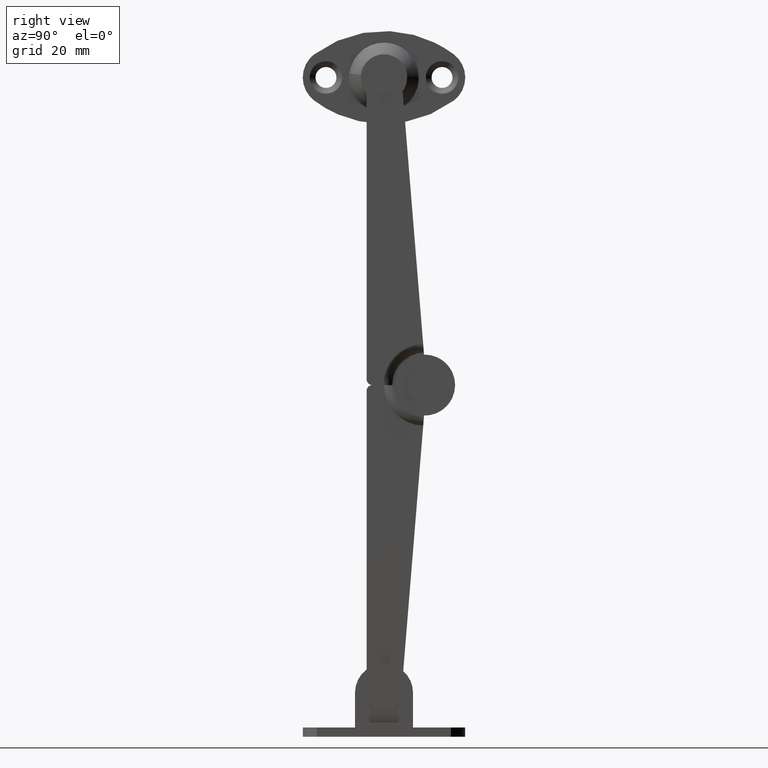
[diagram: clean part render]
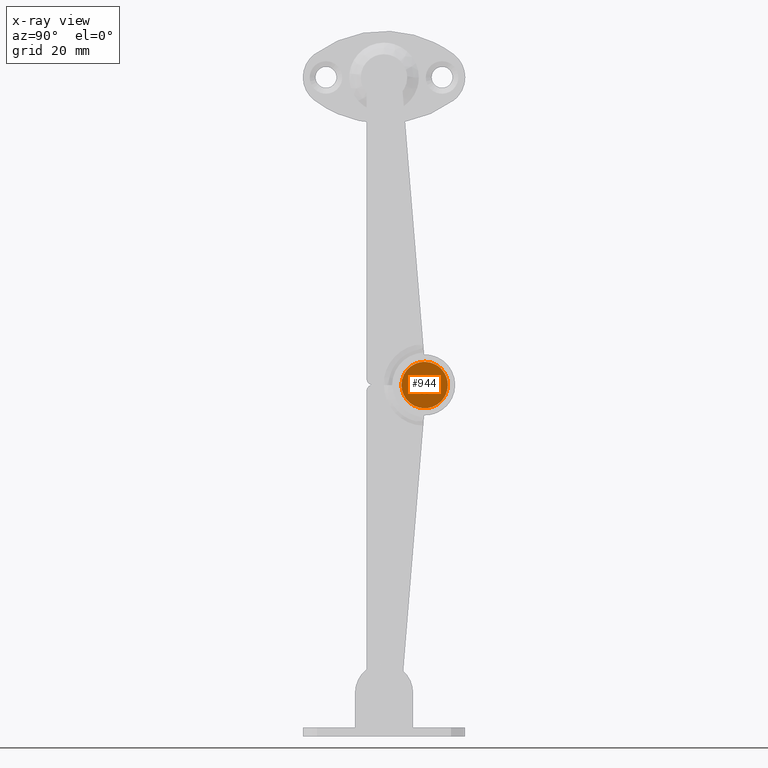
[diagram: x-ray — body ghosted, one internal face saturated and labeled with its STEP entity id]
A machine part, right view, then the same camera in x-ray: the body is ghosted and one INTERNAL B-rep face — a face not visible from any outside direction — is saturated and labeled: STEP entity #944.
In plain terms, the highlighted face is a freeform B-spline surface patch.
Its self-contained STEP definition (entity closure, byte-faithful):
#552=CARTESIAN_POINT('',(6.550003000000000,7.000000000000110,1.500000000000222));
#553=VERTEX_POINT('',#552);
#554=CARTESIAN_POINT('',(6.550002999947646,5.925023950730402,1.046147349520219));
#555=VERTEX_POINT('',#554);
#556=CARTESIAN_POINT('',(6.550003000000000,7.000000000000110,1.500000000000222));
#557=CARTESIAN_POINT('',(6.550002999992099,6.837706174074635,1.500068441585080));
#558=CARTESIAN_POINT('',(6.550002999972634,6.438221823182978,1.434579158738365));
#559=CARTESIAN_POINT('',(6.550002999955695,6.090189898955542,1.216536212504145));
#560=CARTESIAN_POINT('',(6.550002999947646,5.925023950730402,1.046147349520219));
#561=B_SPLINE_CURVE_WITH_KNOTS('',3,(#556,#557,#558,#559,#560),.UNSPECIFIED.,.F.,.U.,(4,1,4),(0.000000071665457,0.486899926286548,1.198513680559806),.UNSPECIFIED.);
#562=EDGE_CURVE('',#553,#555,#561,.T.);
#617=CARTESIAN_POINT('',(6.550003000092930,5.894083304270875,-1.013385647754597));
#618=VERTEX_POINT('',#617);
#624=CARTESIAN_POINT('',(6.550003000000000,7.000000000000110,-1.499999999999778));
#625=VERTEX_POINT('',#624);
#626=CARTESIAN_POINT('',(6.550003000092930,5.894083304270875,-1.013385647754597));
#627=CARTESIAN_POINT('',(6.550003000084847,5.990311760757904,-1.118486025651353));
#628=CARTESIAN_POINT('',(6.550003000068693,6.182666965982895,-1.275996733928428));
#629=CARTESIAN_POINT('',(6.550003000036993,6.559646851253445,-1.453678001532956));
#630=CARTESIAN_POINT('',(6.550003000014155,6.831583026358383,-1.500121036501371));
#631=CARTESIAN_POINT('',(6.550003000000000,7.000000000000110,-1.499999999999778));
#632=B_SPLINE_CURVE_WITH_KNOTS('',3,(#626,#627,#628,#629,#630,#631),.UNSPECIFIED.,.F.,.U.,(4,1,1,4),(0.000000086124990,0.427491619013509,0.738372907848254,1.243582383713739),.UNSPECIFIED.);
#633=EDGE_CURVE('',#618,#625,#632,.T.);
#635=CARTESIAN_POINT('',(6.550002999999999,8.499999999997197,0.000002956543078));
#636=VERTEX_POINT('',#635);
#637=CARTESIAN_POINT('',(6.550003000000000,7.000000000000110,-1.499999999999778));
#638=CARTESIAN_POINT('',(6.550003000000014,7.171819636141538,-1.500114842806033));
#639=CARTESIAN_POINT('',(6.550002999999969,7.466269505471305,-1.448828504222825));
#640=CARTESIAN_POINT('',(6.550003000000030,7.830709517185276,-1.265342338820959));
#641=CARTESIAN_POINT('',(6.550002999999985,8.104686178538890,-1.034819183557203));
#642=CARTESIAN_POINT('',(6.550002999999991,8.333057086816854,-0.726970814182122));
#643=CARTESIAN_POINT('',(6.550003000000019,8.471466967239286,-0.368167483513054));
#644=CARTESIAN_POINT('',(6.550002999999963,8.500004646251622,-0.110439344249990));
#645=CARTESIAN_POINT('',(6.550002999999999,8.499999999997197,0.000002956543078));
#646=B_SPLINE_CURVE_WITH_KNOTS('',3,(#637,#638,#639,#640,#641,#642,#643,#644,#645),.UNSPECIFIED.,.F.,.U.,(4,1,1,1,1,1,4),(0.000000283922669,0.515427319927984,0.883617563070216,1.214902428543500,1.583096956590063,2.024911486834871,2.356255282954705),.UNSPECIFIED.);
#647=EDGE_CURVE('',#625,#636,#646,.T.);
#649=CARTESIAN_POINT('',(6.550002999999999,8.499999999997197,0.000002956543078));
#650=CARTESIAN_POINT('',(6.550002999999996,8.500371318000942,0.220979571929273));
#651=CARTESIAN_POINT('',(6.550003000000014,8.428190347491876,0.539719342965706));
#652=CARTESIAN_POINT('',(6.550002999999999,8.206233911179885,0.909891749454275));
#653=CARTESIAN_POINT('',(6.550002999999994,7.987753661459612,1.145053094614386));
#654=CARTESIAN_POINT('',(6.550003000000023,7.600934219064642,1.410723855239751));
#655=CARTESIAN_POINT('',(6.550002999999989,7.245550008430971,1.500464615567301));
#656=CARTESIAN_POINT('',(6.550003000000000,7.000000000000110,1.500000000000222));
#657=B_SPLINE_CURVE_WITH_KNOTS('',3,(#649,#650,#651,#652,#653,#654,#655,#656),.UNSPECIFIED.,.F.,.U.,(4,1,1,1,1,4),(0.000000287959848,0.662699813077604,0.957229290619735,1.288574148694731,1.619918183907657,2.356251950158684),.UNSPECIFIED.);
#658=EDGE_CURVE('',#636,#553,#657,.T.);
#677=CARTESIAN_POINT('',(6.550003000000000,5.500000000003025,-0.000002956542640));
#678=VERTEX_POINT('',#677);
#679=CARTESIAN_POINT('',(6.550002999947646,5.925023950730402,1.046147349520219));
#680=CARTESIAN_POINT('',(6.550002999953270,5.815647050607013,0.933836348733937));
#681=CARTESIAN_POINT('',(6.550002999969244,5.590251543779345,0.614697300078537));
#682=CARTESIAN_POINT('',(6.550002999988521,5.499608084038361,0.229211347048432));
#683=CARTESIAN_POINT('',(6.550003000000000,5.500000000003025,-0.000002956542640));
#684=B_SPLINE_CURVE_WITH_KNOTS('',3,(#679,#680,#681,#682,#683),.UNSPECIFIED.,.F.,.U.,(4,1,4),(0.000000060384520,0.470336184078797,1.157742364919620),.UNSPECIFIED.);
#685=EDGE_CURVE('',#555,#678,#684,.T.);
#687=CARTESIAN_POINT('',(6.550003000000000,5.500000000003025,-0.000002956542640));
#688=CARTESIAN_POINT('',(6.550003000019130,5.499750459990217,-0.208664243358497));
#689=CARTESIAN_POINT('',(6.550003000053128,5.578700157833219,-0.579290472217914));
#690=CARTESIAN_POINT('',(6.550003000081950,5.784397168312895,-0.893803282410189));
#691=CARTESIAN_POINT('',(6.550003000092930,5.894083304270875,-1.013385647754597));
#692=B_SPLINE_CURVE_WITH_KNOTS('',3,(#687,#688,#689,#690,#691),.UNSPECIFIED.,.F.,.U.,(4,1,4),(0.000000063142547,0.625863541372743,1.112669400985420),.UNSPECIFIED.);
#693=EDGE_CURVE('',#678,#618,#692,.T.);
#744=CARTESIAN_POINT('',(6.550003000000000,7.000000000000110,4.000000000000222));
#745=VERTEX_POINT('',#744);
#746=CARTESIAN_POINT('',(6.550002999945628,9.866603451107435,2.789727732989817));
#747=VERTEX_POINT('',#746);
#748=CARTESIAN_POINT('',(6.550003000000000,7.000000000000110,4.000000000000222));
#749=CARTESIAN_POINT('',(6.550002999994953,7.266326984591732,4.000021287364333));
#750=CARTESIAN_POINT('',(6.550002999983571,7.865564171471941,3.939972794844508));
#751=CARTESIAN_POINT('',(6.550002999964299,8.883203919947016,3.597706330054128));
#752=CARTESIAN_POINT('',(6.550002999951773,9.541737624636440,3.123982133576938));
#753=CARTESIAN_POINT('',(6.550002999945628,9.866603451107435,2.789727732989817));
#754=B_SPLINE_CURVE_WITH_KNOTS('',3,(#748,#749,#750,#751,#752,#753),.UNSPECIFIED.,.F.,.U.,(4,1,1,4),(0.000000039135399,0.798993588592153,1.797721670780087,3.195974236967176),.UNSPECIFIED.);
#755=EDGE_CURVE('',#745,#747,#754,.T.);
#816=CARTESIAN_POINT('',(6.550003000088837,9.949109760100203,-2.702361086088350));
#817=VERTEX_POINT('',#816);
#823=CARTESIAN_POINT('',(6.550003000000000,7.000000000000110,-3.999999999999778));
#824=VERTEX_POINT('',#823);
#825=CARTESIAN_POINT('',(6.550003000088837,9.949109760100203,-2.702361086088350));
#826=CARTESIAN_POINT('',(6.550003000081455,9.704150139248695,-2.969862163990313));
#827=CARTESIAN_POINT('',(6.550003000066929,9.221253293817361,-3.370597989725239));
#828=CARTESIAN_POINT('',(6.550003000036920,8.226019814631167,-3.863560889101616));
#829=CARTESIAN_POINT('',(6.550003000014574,7.483682207635162,-4.000446201419543));
#830=CARTESIAN_POINT('',(6.550003000000000,7.000000000000110,-3.999999999999778));
#831=B_SPLINE_CURVE_WITH_KNOTS('',3,(#825,#826,#827,#828,#829,#830),.UNSPECIFIED.,.F.,.U.,(4,1,1,4),(0.000000047035520,1.088116536802877,1.865318354134021,3.316149050255643),.UNSPECIFIED.);
#832=EDGE_CURVE('',#817,#824,#831,.T.);
#834=CARTESIAN_POINT('',(6.550003000000000,3.000000000000569,0.000001915651805));
#835=VERTEX_POINT('',#834);
#836=CARTESIAN_POINT('',(6.550003000000000,7.000000000000110,-3.999999999999778));
#837=CARTESIAN_POINT('',(6.550002999999991,6.574541840054601,-4.000256434293655));
#838=CARTESIAN_POINT('',(6.550003000000028,5.854759836891536,-3.883993823016080));
#839=CARTESIAN_POINT('',(6.550002999999987,4.956745614657244,-3.472609783362256));
#840=CARTESIAN_POINT('',(6.550003000000007,4.164228809393695,-2.885085859858886));
#841=CARTESIAN_POINT('',(6.550003000000000,3.522257850114541,-2.082961691415835));
#842=CARTESIAN_POINT('',(6.550003000000000,3.093409921491267,-1.047131207146779));
#843=CARTESIAN_POINT('',(6.550003000000003,2.999888365813145,-0.359981872793499));
#844=CARTESIAN_POINT('',(6.550003000000000,3.000000000000569,0.000001915651805));
#845=B_SPLINE_CURVE_WITH_KNOTS('',3,(#836,#837,#838,#839,#840,#841,#842,#843,#844),.UNSPECIFIED.,.F.,.U.,(4,1,1,1,1,1,4),(0.000000149462030,1.276279532929519,2.159867367983822,2.945293759162748,4.221537014526383,5.203301789403566,6.283225811214067),.UNSPECIFIED.);
#846=EDGE_CURVE('',#824,#835,#845,.T.);
#848=CARTESIAN_POINT('',(6.550003000000000,3.000000000000569,0.000001915651805));
#849=CARTESIAN_POINT('',(6.550003000000006,2.999759733083507,0.425456064018236));
#850=CARTESIAN_POINT('',(6.550003000000002,3.129126105127285,1.227078169869870));
#851=CARTESIAN_POINT('',(6.550003000000007,3.606181307276840,2.189504242375267));
#852=CARTESIAN_POINT('',(6.550003000000018,4.146152569059175,2.831033958559890));
#853=CARTESIAN_POINT('',(6.550002999999977,4.723616499993454,3.316958806270597));
#854=CARTESIAN_POINT('',(6.550003000000015,5.382507301648073,3.690265074554841));
#855=CARTESIAN_POINT('',(6.550002999999952,6.181900892769052,3.943440939130036));
#856=CARTESIAN_POINT('',(6.550003000000029,6.721842185995404,4.000044365957314));
#857=CARTESIAN_POINT('',(6.550003000000000,7.000000000000110,4.000000000000222));
#858=B_SPLINE_CURVE_WITH_KNOTS('',3,(#848,#849,#850,#851,#852,#853,#854,#855,#856,#857),.UNSPECIFIED.,.F.,.U.,(4,1,1,1,1,1,1,4),(0.000000150126762,1.276279094633165,2.405321376991511,3.190653863535835,3.779733231991930,4.663329691550899,5.448755214538346,6.283223651814722),.UNSPECIFIED.);
#859=EDGE_CURVE('',#835,#745,#858,.T.);
#878=CARTESIAN_POINT('',(6.550003000000000,10.999999999999650,-0.000001915651352));
#879=VERTEX_POINT('',#878);
#880=CARTESIAN_POINT('',(6.550002999945628,9.866603451107435,2.789727732989817));
#881=CARTESIAN_POINT('',(6.550002999951411,10.158329633577191,2.490249681586742));
#882=CARTESIAN_POINT('',(6.550002999963711,10.599505065502751,1.865206353740486));
#883=CARTESIAN_POINT('',(6.550002999982739,10.937178926285631,0.884364595732581));
#884=CARTESIAN_POINT('',(6.550002999994683,11.000025718808510,0.273344886157996));
#885=CARTESIAN_POINT('',(6.550003000000000,10.999999999999650,-0.000001915651352));
#886=B_SPLINE_CURVE_WITH_KNOTS('',3,(#880,#881,#882,#883,#884,#885),.UNSPECIFIED.,.F.,.U.,(4,1,1,4),(0.000000037147579,1.254205693597863,2.267200456070120,3.087252069584545),.UNSPECIFIED.);
#887=EDGE_CURVE('',#747,#879,#886,.T.);
#889=CARTESIAN_POINT('',(6.550003000000000,10.999999999999650,-0.000001915651352));
#890=CARTESIAN_POINT('',(6.550003000008128,11.000003473283019,-0.247252520999947));
#891=CARTESIAN_POINT('',(6.550003000028458,10.942620367735531,-0.865418806261846));
#892=CARTESIAN_POINT('',(6.550003000059561,10.624211219216090,-1.811891459719836));
#893=CARTESIAN_POINT('',(6.550003000079856,10.199768668340250,-2.428994081164599));
#894=CARTESIAN_POINT('',(6.550003000088837,9.949109760100203,-2.702361086088350));
#895=B_SPLINE_CURVE_WITH_KNOTS('',3,(#889,#890,#891,#892,#893,#894),.UNSPECIFIED.,.F.,.U.,(4,1,1,4),(0.000000034336659,0.741768629905000,1.854421151719649,2.967074505221409),.UNSPECIFIED.);
#896=EDGE_CURVE('',#879,#817,#895,.T.);
#923=CARTESIAN_POINT('',(6.550003000000091,11.399599984494049,-4.399599984494225));
#924=CARTESIAN_POINT('',(6.550003000000091,2.600399800929446,-4.399599984494225));
#925=CARTESIAN_POINT('',(6.550003000000091,11.399599984494049,4.399600199071391));
#926=CARTESIAN_POINT('',(6.550003000000091,2.600399800929446,4.399600199071391));
#927=B_SPLINE_SURFACE_WITH_KNOTS('',1,1,((#923,#925),(#924,#926)),.UNSPECIFIED.,.F.,.F.,.U.,(2,2),(2,2),(0.0,8.799200183564606),(0.0,8.799200183565617),.UNSPECIFIED.);
#928=ORIENTED_EDGE('',*,*,#859,.F.);
#929=ORIENTED_EDGE('',*,*,#846,.F.);
#930=ORIENTED_EDGE('',*,*,#832,.F.);
#931=ORIENTED_EDGE('',*,*,#896,.F.);
#932=ORIENTED_EDGE('',*,*,#887,.F.);
#933=ORIENTED_EDGE('',*,*,#755,.F.);
#934=EDGE_LOOP('',(#928,#929,#930,#931,#932,#933));
#935=FACE_OUTER_BOUND('',#934,.T.);
#936=ORIENTED_EDGE('',*,*,#647,.F.);
#937=ORIENTED_EDGE('',*,*,#633,.F.);
#938=ORIENTED_EDGE('',*,*,#693,.F.);
#939=ORIENTED_EDGE('',*,*,#685,.F.);
#940=ORIENTED_EDGE('',*,*,#562,.F.);
#941=ORIENTED_EDGE('',*,*,#658,.F.);
#942=EDGE_LOOP('',(#936,#937,#938,#939,#940,#941));
#943=FACE_BOUND('',#942,.T.);
#944=ADVANCED_FACE('',(#935,#943),#927,.F.);